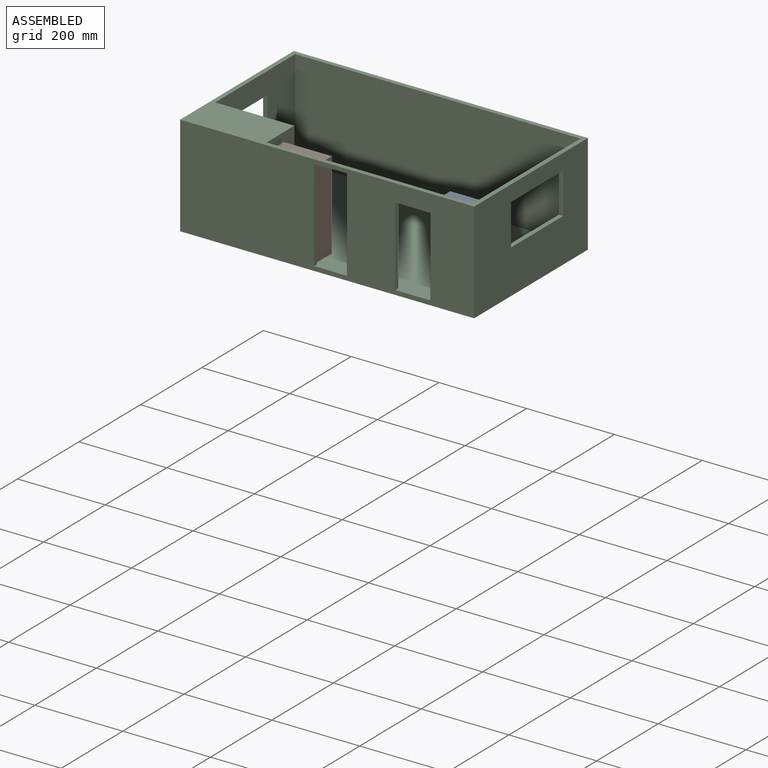
[diagram: assembled view]
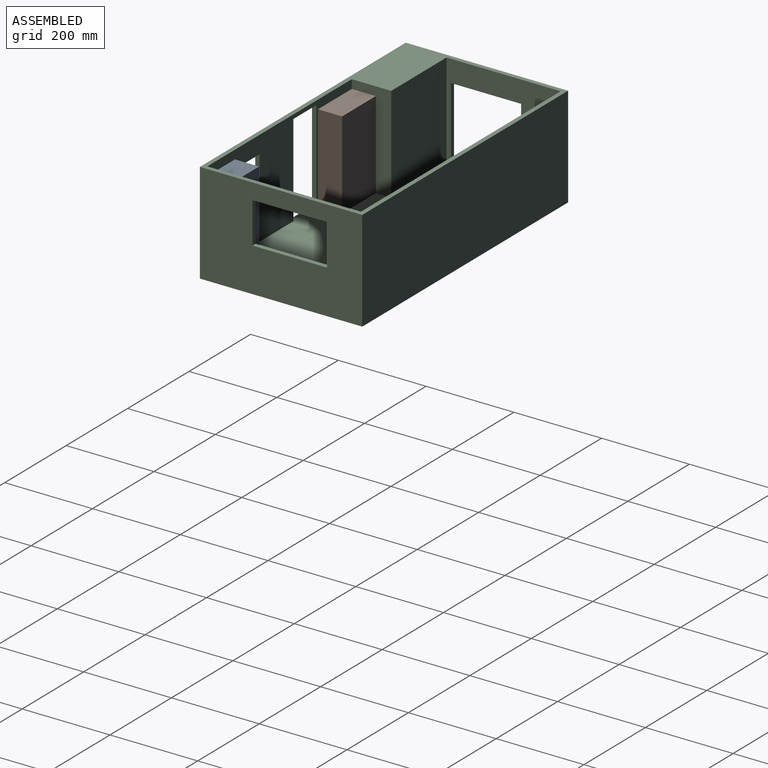
[diagram: assembled view, second angle]
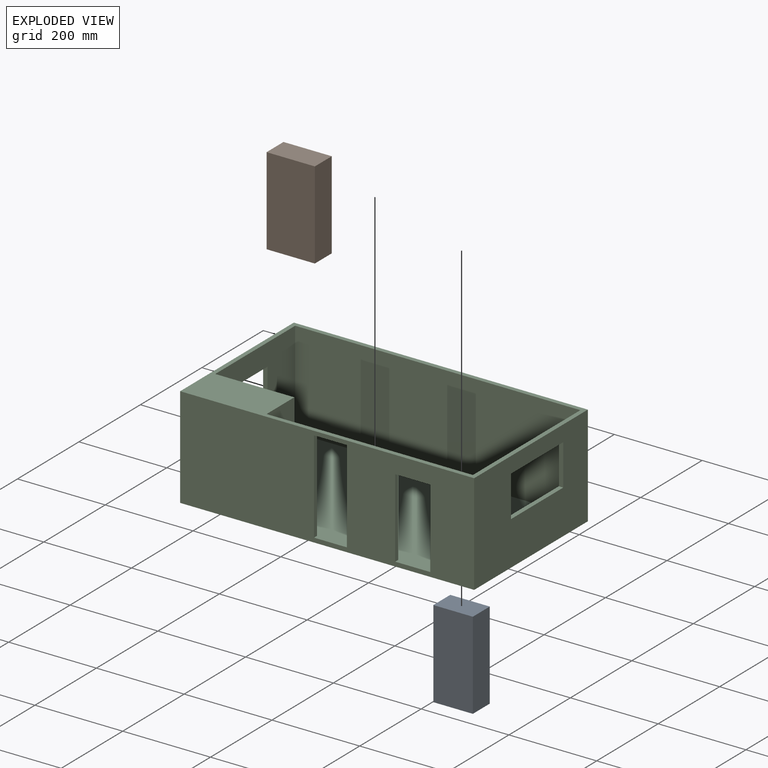
[diagram: exploded view]
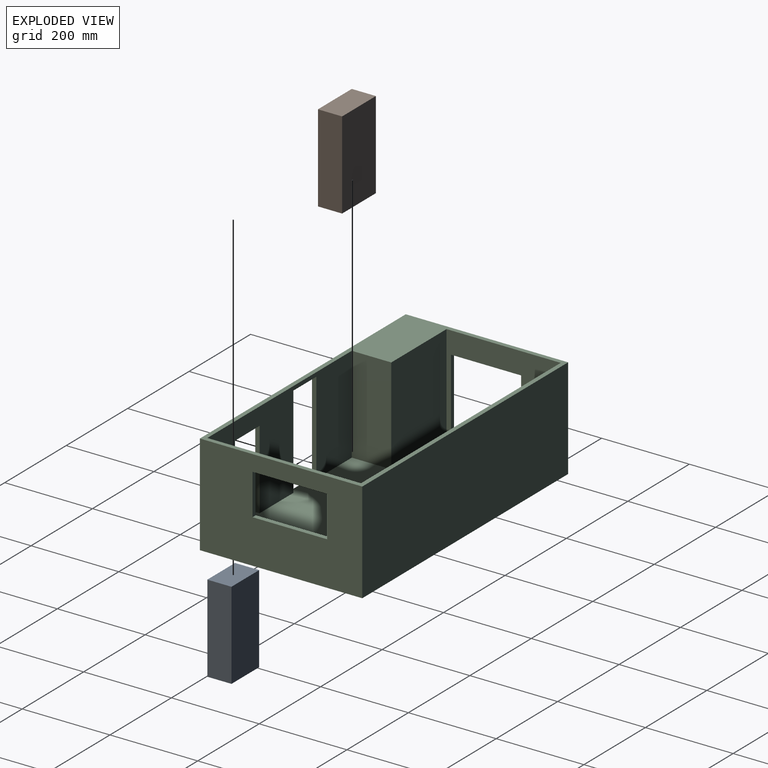
[diagram: exploded view, second angle]
ASSEMBLY  parts=3 mates=2
PART A: 6 faces, bbox 90x55x200 mm
  f0: plane 200x55mm, normal (-1,0,0), area 11000mm2, adj f1,f3,f4,f5
  f1: plane 200x90mm, normal (0,-1,0), area 18000mm2, adj f0,f2,f4,f5
  f2: plane 200x55mm, normal (1,0,0), area 11000mm2, adj f1,f3,f4,f5
  f3: plane 200x90mm, normal (0,1,0), area 18000mm2, adj f0,f2,f4,f5
  f4: plane 90x55mm, normal (0,0,1), area 4950mm2, adj f0,f1,f2,f3
  f5: plane 90x55mm, normal (0,0,-1), area 4950mm2, adj f0,f1,f2,f3
PART B: 6 faces, bbox 110x55x200 mm
  f0: plane 200x55mm, normal (-1,0,0), area 11000mm2, adj f1,f3,f4,f5
  f1: plane 200x110mm, normal (0,-1,0), area 22000mm2, adj f0,f2,f4,f5
  f2: plane 200x55mm, normal (1,0,0), area 11000mm2, adj f1,f3,f4,f5
  f3: plane 200x110mm, normal (0,1,0), area 22000mm2, adj f0,f2,f4,f5
  f4: plane 110x55mm, normal (0,0,1), area 6050mm2, adj f0,f1,f2,f3
  f5: plane 110x55mm, normal (0,0,-1), area 6050mm2, adj f0,f1,f2,f3
PART C: 27 faces, bbox 670x370x230 mm
  f0: plane 670x230mm, normal (0,-1,0), area 123904.2mm2, adj f2,f4,f7,f11,f12,f17,f18,f19
  f1: plane 470x220mm, normal (0,1,0), area 73204.2mm2, adj f3,f8,f11,f12,f17,f18,f19,f24
  f2: plane 370x230mm, normal (1,0,0), area 69206.8mm2, adj f0,f6,f7,f11,f20,f21,f22,f23
  f3: plane 350x220mm, normal (-1,0,0), area 61106.8mm2, adj f1,f10,f11,f12,f20,f21,f22,f23
  f4: plane 370x230mm, normal (-1,0,0), area 59500mm2, adj f0,f6,f7,f11,f13,f14,f15,f16
  f5: plane 260x220mm, normal (1,0,0), area 31600mm2, adj f9,f10,f11,f12,f13,f14,f15,f16
  f6: plane 670x230mm, normal (0,1,0), area 154100mm2, adj f2,f4,f7,f11
  f7: plane 670x370mm, normal (0,0,-1), area 247900mm2, adj f0,f2,f4,f6
  f8: plane 220x90mm, normal (1,0,0), area 19800mm2, adj f1,f9,f11,f12
  f9: plane 220x180mm, normal (0,1,0), area 39600mm2, adj f5,f8,f11,f12
  f10: plane 650x220mm, normal (0,-1,0), area 143000mm2, adj f3,f5,f11,f12
  f11: plane 670x370mm, normal (0,0,1), area 36600mm2, adj f0,f1,f2,f3,f4,f5,f6,f8
  f12: plane 650x360mm, normal (0,0,1), area 212850mm2, adj f0,f1,f3,f5,f8,f9,f10,f17
  f13: plane 160x10mm, normal (0,1,0), area 1600mm2, adj f4,f5,f14,f16
  f14: plane 160x10mm, normal (0,0,1), area 1600mm2, adj f4,f5,f13,f15
  f15: plane 160x10mm, normal (0,-1,0), area 1600mm2, adj f4,f5,f14,f16
  f16: plane 160x10mm, normal (0,0,-1), area 1600mm2, adj f4,f5,f13,f15
  f17: plane 210.61x10mm, normal (-1,0,0), area 2106.1mm2, adj f0,f1,f12,f19
  f18: plane 210.61x10mm, normal (1,0,0), area 2106.1mm2, adj f0,f1,f12,f19
  f19: plane 75x10mm, normal (0,0,-1), area 750mm2, adj f0,f1,f17,f18
  f20: plane 170x10mm, normal (0,0,1), area 1700mm2, adj f2,f3,f21,f23
  f21: plane 93.49x10mm, normal (0,1,0), area 934.9mm2, adj f2,f3,f20,f22
  f22: plane 170x10mm, normal (0,0,-1), area 1700mm2, adj f2,f3,f21,f23
  f23: plane 93.49x10mm, normal (0,-1,0), area 934.9mm2, adj f2,f3,f20,f22
  f24: plane 80x10mm, normal (0,0,-1), area 800mm2, adj f0,f1,f25,f26
  f25: plane 180x10mm, normal (-1,0,0), area 1800mm2, adj f0,f1,f12,f24
  f26: plane 180x10mm, normal (1,0,0), area 1800mm2, adj f0,f1,f12,f24
PLACE A t=(261.35,-156.08,0)mm
PLACE B t=(-108.65,-156.08,0)mm
PLACE C t=(-18.65,-8.58,-10)mm
MATE fastened C.f12 <-> B.f5  axis (0,0,1) through (-163.65,-183.58,0)mm
MATE fastened C.f12 <-> A.f5  axis (0,0,1) through (306.35,-183.58,0)mm
